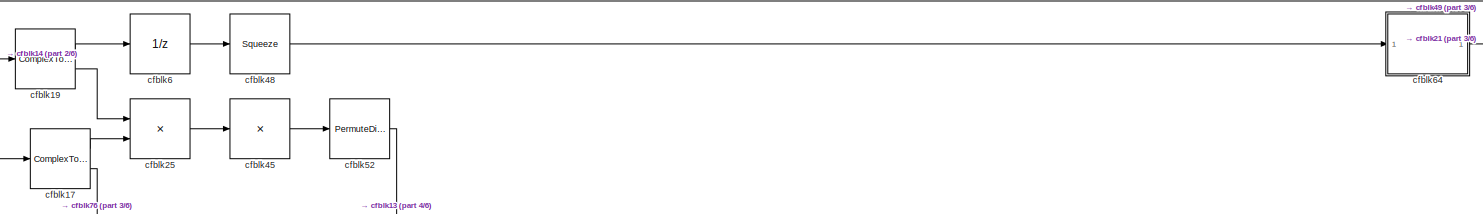
[diagram: root canvas - part 1/6, top center region]
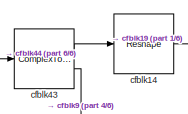
[diagram: root canvas - part 2/6, top left region]
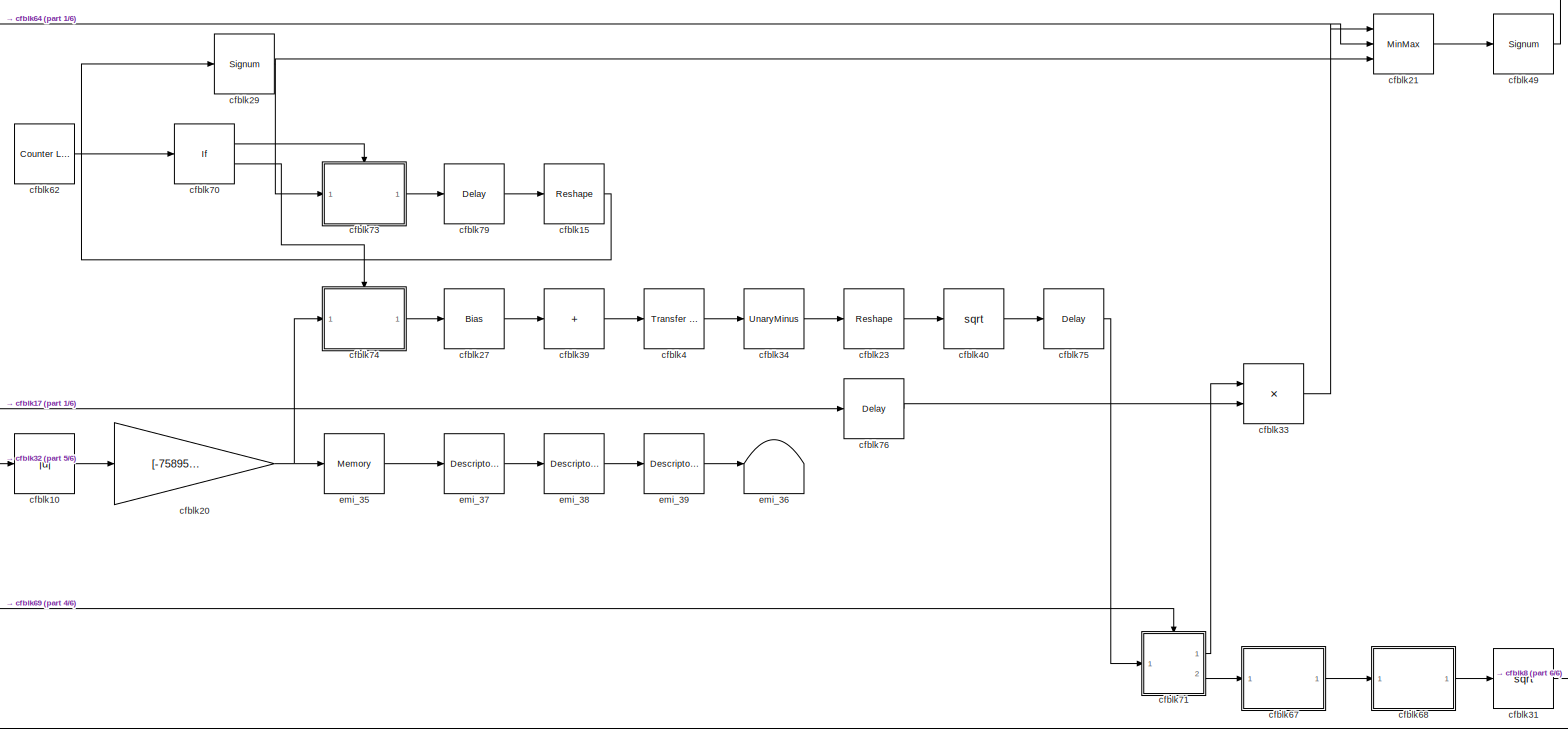
[diagram: root canvas - part 3/6, middle right region]
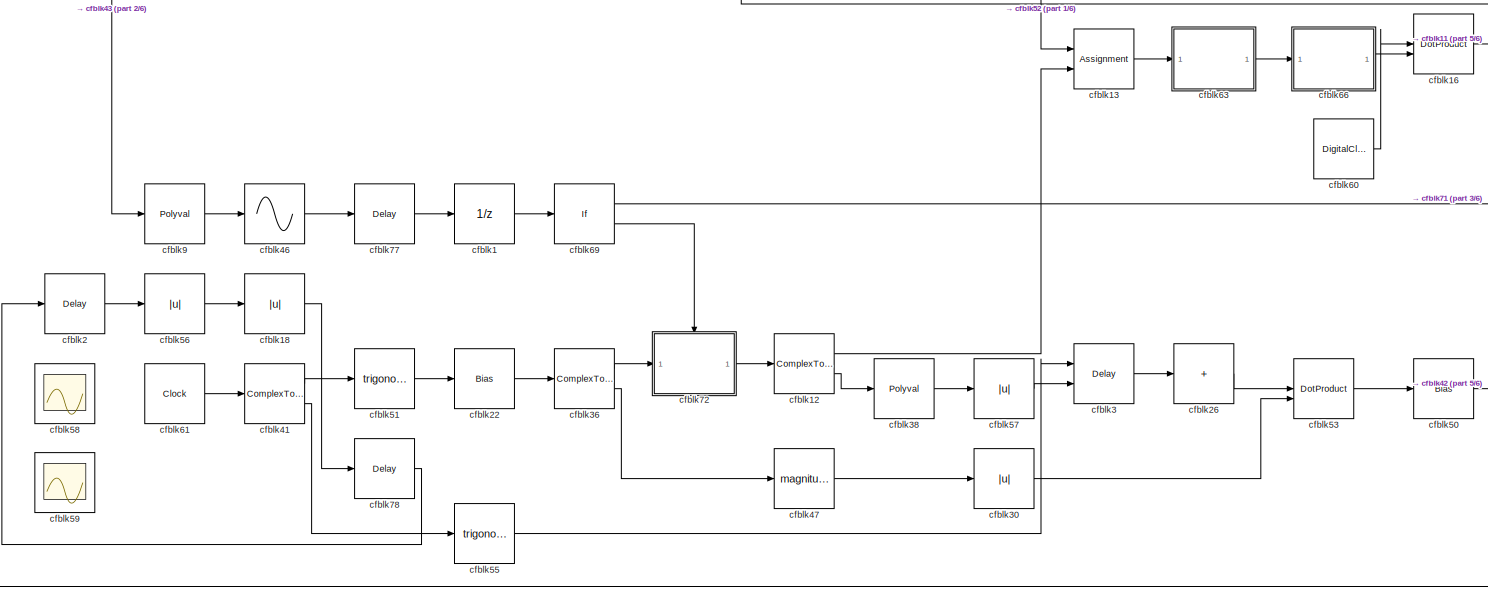
[diagram: root canvas - part 4/6, bottom left region]
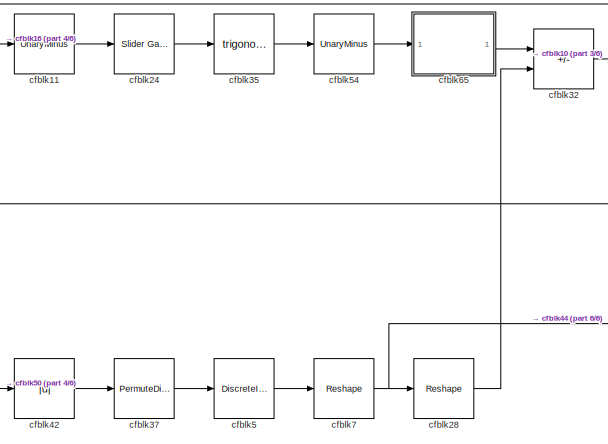
[diagram: root canvas - part 5/6, central region]
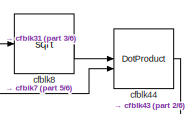
[diagram: root canvas - part 6/6, bottom right region]
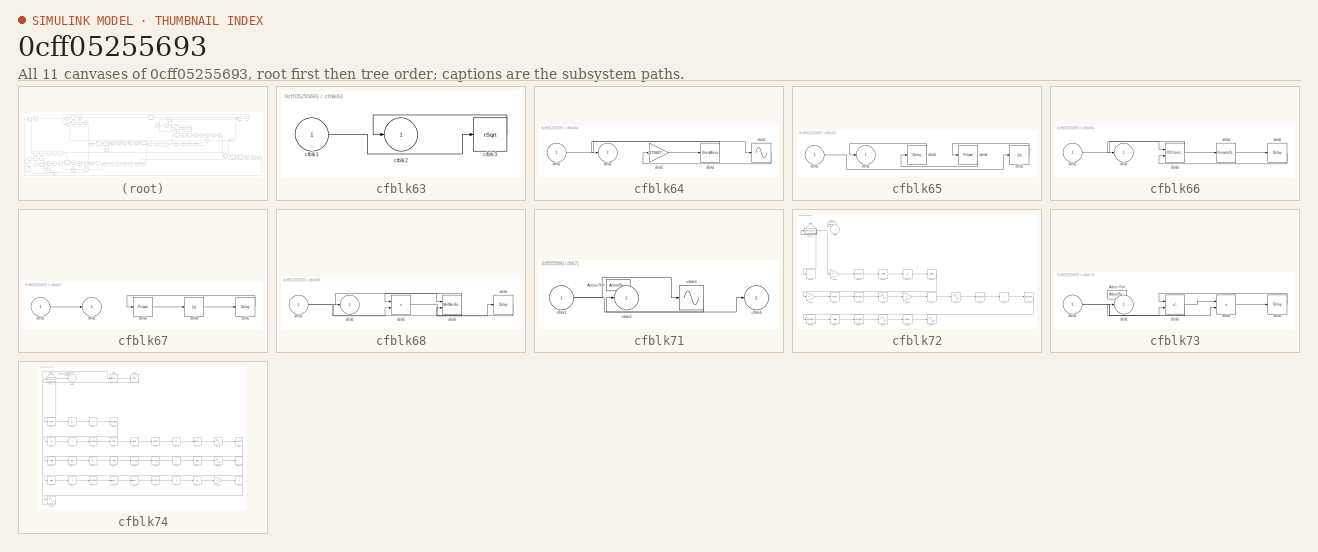
[diagram: thumbnail index - all 11 canvases of the model, root first then tree order]
MODEL slx_0cff05255693
KIND model
CONFIG AbsTol = auto
CONFIG EnableMultiTasking = off
CONFIG FixedStep = auto
CONFIG MaxStep = auto
CONFIG MinStep = auto
CONFIG RelTol = 1e-3
CONFIG SampleTimeConstraint = Unconstrained
CONFIG SolverName = VariableStepAuto
CONFIG StartTime = 0.0
CONFIG StopTime = 10.0
BLOCK [UnitDelay] cfblk1
  HasFrameUpgradeWarning = on
BLOCK [Abs] cfblk10
  SaturateOnIntegerOverflow = off
BLOCK [UnaryMinus] cfblk11
BLOCK [ComplexToMagnitudeAngle] cfblk12
  Ports = [1, 2]
BLOCK [Assignment] cfblk13
  DiagnosticForDimensions = Warning
  IndexOptions = Index vector (dialog)
  Indices = 1
  OutputSizes = 1
  Ports = [2, 1]
BLOCK [Reshape] cfblk14
  Ports = [1, 1]
BLOCK [Reshape] cfblk15
  Ports = [1, 1]
BLOCK [DotProduct] cfblk16
  OutDataTypeStr = Inherit: Inherit via internal rule
BLOCK [ComplexToMagnitudeAngle] cfblk17
  Ports = [1, 2]
BLOCK [Abs] cfblk18
  SaturateOnIntegerOverflow = off
BLOCK [ComplexToRealImag] cfblk19
  Ports = [1, 2]
BLOCK [Delay] cfblk2
  InputPortMap = u0
  Ports = [1, 1]
  SampleTime = 1
BLOCK [Gain] cfblk20
  Gain = [-758951851.585151]
BLOCK [MinMax] cfblk21
  Inputs = 3
  Ports = [3, 1]
BLOCK [Bias] cfblk22
  Bias = [749742041.378697]
  SaturateOnIntegerOverflow = off
BLOCK [Reshape] cfblk23
  Ports = [1, 1]
BLOCK [Reference] cfblk24  REF=simulink/Math
Operations/Slider
Gain
  Ports = [1, 1]
  SourceBlock = simulink/Math\nOperations/Slider\nGain
  SourceProductBaseCode = SL
  SourceType = Slider Gain
BLOCK [Product] cfblk25
  Ports = [2, 1]
BLOCK [Sum] cfblk26
  IconShape = rectangular
  Inputs = +
  Ports = [1, 1]
BLOCK [Bias] cfblk27
  Bias = [-185034104.199175]
  SaturateOnIntegerOverflow = off
BLOCK [Reshape] cfblk28
  Ports = [1, 1]
BLOCK [Signum] cfblk29
BLOCK [Delay] cfblk3
  DelayLengthSource = Input port
  InputPortMap = u0,p1
  Ports = [2, 1]
  SampleTime = 1
BLOCK [Abs] cfblk30
  SaturateOnIntegerOverflow = off
BLOCK [Sqrt] cfblk31
BLOCK [Sum] cfblk32
  IconShape = rectangular
  Inputs = +-
  Ports = [2, 1]
BLOCK [Product] cfblk33
  Ports = [2, 1]
BLOCK [UnaryMinus] cfblk34
BLOCK [Trigonometry] cfblk35
  Ports = [1, 1]
BLOCK [ComplexToMagnitudeAngle] cfblk36
  Ports = [1, 2]
BLOCK [PermuteDimensions] cfblk37
BLOCK [Polyval] cfblk38
  Coefs = [ +2.081618890e-019, -1.441693666e-014, +4.719686976e-010, -8.536869453e-006, +1.621573104e-001, -8.087801117e+001 ]
BLOCK [Sum] cfblk39
  IconShape = rectangular
  Inputs = +
  Ports = [1, 1]
BLOCK [Reference] cfblk4  REF=simulink/Discrete/Transfer Fcn
First Order
  Ports = [1, 1]
  SourceBlock = simulink/Discrete/Transfer Fcn\nFirst Order
  SourceProductBaseCode = SL
  SourceType = First Order Transfer Fcn
BLOCK [Sqrt] cfblk40
BLOCK [ComplexToRealImag] cfblk41
  Ports = [1, 2]
BLOCK [Abs] cfblk42
  SaturateOnIntegerOverflow = off
BLOCK [ComplexToMagnitudeAngle] cfblk43
  Ports = [1, 2]
BLOCK [DotProduct] cfblk44
  OutDataTypeStr = Inherit: Inherit via internal rule
BLOCK [Product] cfblk45
  Inputs = *
  Ports = [1, 1]
BLOCK [Sin] cfblk46
  Ports = [1, 1]
  SampleTime = 0
  TimeSource = Use external signal
BLOCK [Math] cfblk47
  Operator = magnitude^2
  Ports = [1, 1]
BLOCK [Squeeze] cfblk48
BLOCK [Signum] cfblk49
BLOCK [DiscreteIntegrator] cfblk5
  ICPrevOutput = DiscIntNeverNeededParam
  ICPrevScaledInput = DiscIntNeverNeededParam
  InitialConditionSetting = Auto
  Ports = [1, 1]
BLOCK [Bias] cfblk50
  Bias = [622648534.571803]
  SaturateOnIntegerOverflow = off
BLOCK [Trigonometry] cfblk51
  Ports = [1, 1]
BLOCK [PermuteDimensions] cfblk52
BLOCK [DotProduct] cfblk53
  OutDataTypeStr = Inherit: Inherit via internal rule
BLOCK [UnaryMinus] cfblk54
BLOCK [Trigonometry] cfblk55
  Ports = [1, 1]
BLOCK [Abs] cfblk56
  SaturateOnIntegerOverflow = off
BLOCK [Abs] cfblk57
  SaturateOnIntegerOverflow = off
BLOCK [Scope] cfblk58
  Floating = on
  NumInputPorts = 1
  Ports = []
  ScopeSpecificationString = Simulink.scopes.TimeScopeBlockCfg('CurrentConfiguration', extmgr.ConfigurationSet(extmgr.Configuration('Core','General UI',true),extmgr.Configuration('Core','Source UI',true),extmgr.Configuration('Sources','WiredSimulink',true),extmgr.Configuration('Visuals','Time Domain',true),extmgr.Configuration('Tools','Plot Navigation',true),extmgr.Configuration('Tools','Measurements',true)),'Version','2021b'...<+1ch>
BLOCK [Scope] cfblk59
  Floating = on
  NumInputPorts = 1
  Ports = []
  ScopeSpecificationString = Simulink.scopes.TimeScopeBlockCfg('CurrentConfiguration', extmgr.ConfigurationSet(extmgr.Configuration('Core','General UI',true),extmgr.Configuration('Core','Source UI',true),extmgr.Configuration('Sources','WiredSimulink',true),extmgr.Configuration('Visuals','Time Domain',true),extmgr.Configuration('Tools','Plot Navigation',true),extmgr.Configuration('Tools','Measurements',true)),'Version','2021b'...<+1ch>
BLOCK [UnitDelay] cfblk6
  HasFrameUpgradeWarning = on
BLOCK [DigitalClock] cfblk60
BLOCK [Clock] cfblk61
BLOCK [Reference] cfblk62  REF=simulink/Sources/Counter
Limited
  Ports = [0, 1]
  SourceBlock = simulink/Sources/Counter\nLimited
  SourceProductBaseCode = SL
  SourceType = Counter Limited
BLOCK [SubSystem] cfblk63
  Ports = [1, 1]
  RequestExecContextInheritance = off
BLOCK [Inport] cfblk63/cfblk1
BLOCK [Outport] cfblk63/cfblk2
BLOCK [Sqrt] cfblk63/cfblk3
  AlgorithmType = Newton-Raphson
  Operator = rSqrt
BLOCK [SubSystem] cfblk64
  Ports = [1, 1]
  RequestExecContextInheritance = off
BLOCK [Inport] cfblk64/cfblk1
BLOCK [Outport] cfblk64/cfblk2
BLOCK [Gain] cfblk64/cfblk3
  Gain = [275667239.765952]
BLOCK [UnaryMinus] cfblk64/cfblk4
BLOCK [Sin] cfblk64/cfblk5
  Ports = [1, 1]
  SampleTime = 0
  TimeSource = Use external signal
BLOCK [SubSystem] cfblk65
  Ports = [1, 1]
  RequestExecContextInheritance = off
BLOCK [Inport] cfblk65/cfblk1
BLOCK [Outport] cfblk65/cfblk2
BLOCK [Delay] cfblk65/cfblk3
  InputPortMap = u0
  Ports = [1, 1]
  SampleTime = 1
BLOCK [Polyval] cfblk65/cfblk4
  Coefs = [ +2.081618890e-019, -1.441693666e-014, +4.719686976e-010, -8.536869453e-006, +1.621573104e-001, -8.087801117e+001 ]
BLOCK [Abs] cfblk65/cfblk5
  SaturateOnIntegerOverflow = off
BLOCK [SubSystem] cfblk66
  Ports = [1, 1]
  RequestExecContextInheritance = off
BLOCK [Inport] cfblk66/cfblk1
BLOCK [Outport] cfblk66/cfblk2
BLOCK [Reference] cfblk66/cfblk3  REF=slpidlib/PID Controller (2DOF)
  Ports = [2, 1]
  SourceBlock = slpidlib/PID Controller (2DOF)
  SourceProductBaseCode = SL
  SourceType = PID 2dof
BLOCK [PermuteDimensions] cfblk66/cfblk4
BLOCK [Delay] cfblk66/cfblk5
  InputPortMap = u0
  Ports = [1, 1]
  SampleTime = 1
BLOCK [SubSystem] cfblk67
  Ports = [1, 1]
  RequestExecContextInheritance = off
BLOCK [Inport] cfblk67/cfblk1
BLOCK [Outport] cfblk67/cfblk2
BLOCK [Polyval] cfblk67/cfblk3
  Coefs = [ +2.081618890e-019, -1.441693666e-014, +4.719686976e-010, -8.536869453e-006, +1.621573104e-001, -8.087801117e+001 ]
BLOCK [Abs] cfblk67/cfblk4
  SaturateOnIntegerOverflow = off
BLOCK [Delay] cfblk67/cfblk5
  InputPortMap = u0
  Ports = [1, 1]
  SampleTime = 1
BLOCK [SubSystem] cfblk68
  Ports = [1, 1]
  RequestExecContextInheritance = off
BLOCK [Inport] cfblk68/cfblk1
BLOCK [Outport] cfblk68/cfblk2
BLOCK [Product] cfblk68/cfblk3
  Ports = [2, 1]
BLOCK [Reference] cfblk68/cfblk4  REF=simulink/Math
Operations/MinMax
Running
Resettable
  Ports = [2, 1]
  SourceBlock = simulink/Math\nOperations/MinMax\nRunning\nResettable
  SourceProductBaseCode = SL
  SourceType = MinMax Running Resettable
BLOCK [Delay] cfblk68/cfblk5
  InputPortMap = u0
  Ports = [1, 1]
  SampleTime = 1
BLOCK [If] cfblk69
  IfExpression = u1 >= 0
  Ports = [1, 2]
  SampleTime = 1
BLOCK [Reshape] cfblk7
  Ports = [1, 1]
BLOCK [If] cfblk70
  IfExpression = u1 >= 0
  Ports = [1, 2]
  SampleTime = 1
BLOCK [SubSystem] cfblk71
  Ports = [1, 2, 0, 0, 0, 0, 0, 1]
  RequestExecContextInheritance = off
  TreatAsAtomicUnit = on
BLOCK [ActionPort] cfblk71/Action Port
  ActionPortLabel = if(u1 >= 0)
BLOCK [Inport] cfblk71/cfblk1
BLOCK [Outport] cfblk71/cfblk2
BLOCK [Sin] cfblk71/cfblk3
  Ports = [1, 1]
  SampleTime = 0
  TimeSource = Use external signal
BLOCK [Outport] cfblk71/cfblk4
  Port = 2
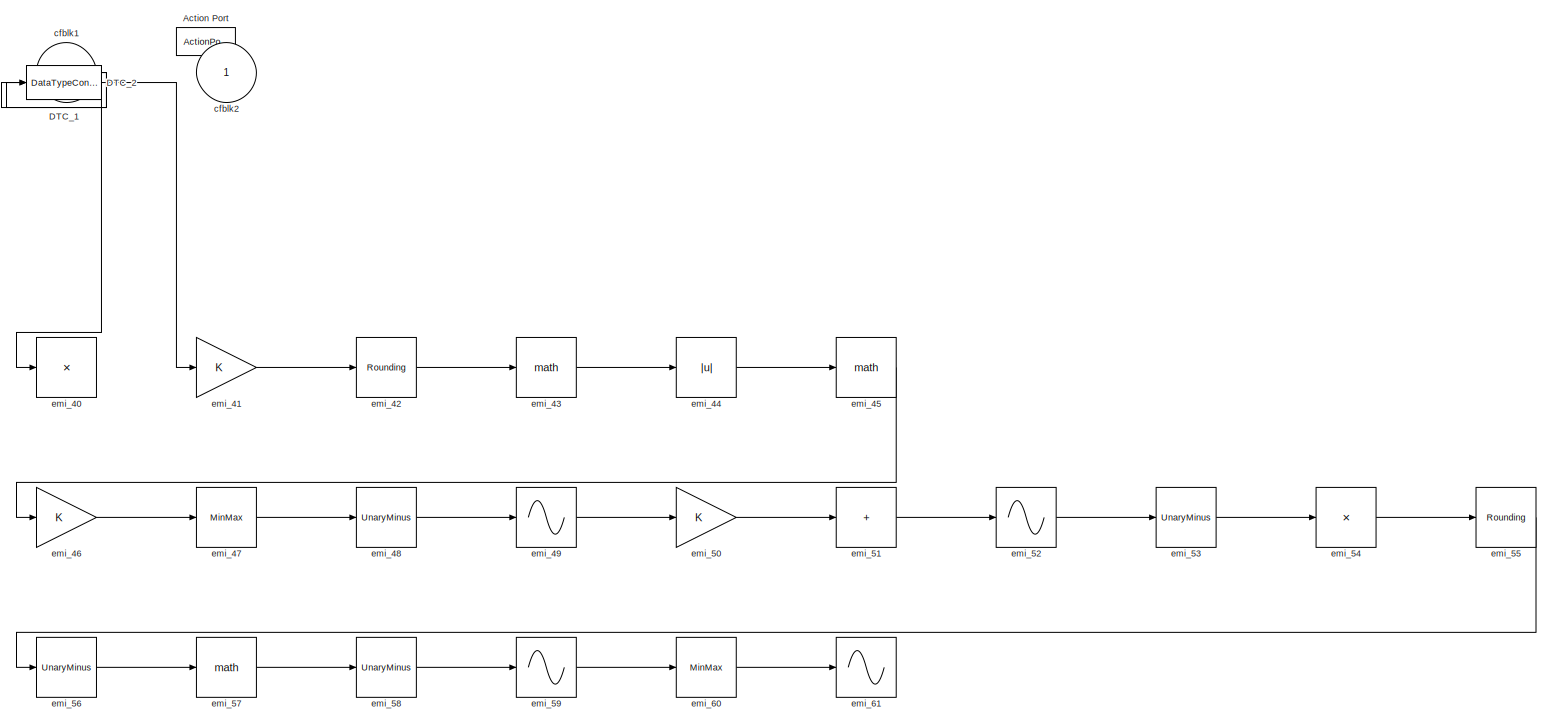
[diagram: cfblk72 - part 1/1, most of the canvas]
BLOCK [SubSystem] cfblk72
  Ports = [1, 1, 0, 0, 0, 0, 0, 1]
  RequestExecContextInheritance = off
  TreatAsAtomicUnit = on
BLOCK [ActionPort] cfblk72/Action Port
  ActionPortLabel = else
BLOCK [DataTypeConversion] cfblk72/DTC_1
  OutDataTypeStr = double
  RndMeth = Floor
  SaturateOnIntegerOverflow = off
BLOCK [DataTypeConversion] cfblk72/DTC_2
  OutDataTypeStr = double
  RndMeth = Floor
  SaturateOnIntegerOverflow = off
BLOCK [Inport] cfblk72/cfblk1
BLOCK [Outport] cfblk72/cfblk2
BLOCK [Product] cfblk72/emi_40
  Inputs = *
  Ports = [1, 1]
BLOCK [Gain] cfblk72/emi_41
BLOCK [Rounding] cfblk72/emi_42
BLOCK [Math] cfblk72/emi_43
  Ports = [1, 1]
BLOCK [Abs] cfblk72/emi_44
  SaturateOnIntegerOverflow = off
BLOCK [Math] cfblk72/emi_45
  Ports = [1, 1]
BLOCK [Gain] cfblk72/emi_46
BLOCK [MinMax] cfblk72/emi_47
  Ports = [1, 1]
BLOCK [UnaryMinus] cfblk72/emi_48
BLOCK [Sin] cfblk72/emi_49
  Ports = [1, 1]
  SampleTime = 0
  TimeSource = Use external signal
BLOCK [Gain] cfblk72/emi_50
BLOCK [Sum] cfblk72/emi_51
  IconShape = rectangular
  Inputs = +
  Ports = [1, 1]
BLOCK [Sin] cfblk72/emi_52
  Ports = [1, 1]
  SampleTime = 0
  TimeSource = Use external signal
BLOCK [UnaryMinus] cfblk72/emi_53
BLOCK [Product] cfblk72/emi_54
  Inputs = *
  Ports = [1, 1]
BLOCK [Rounding] cfblk72/emi_55
BLOCK [UnaryMinus] cfblk72/emi_56
BLOCK [Math] cfblk72/emi_57
  Ports = [1, 1]
BLOCK [UnaryMinus] cfblk72/emi_58
BLOCK [Sin] cfblk72/emi_59
  Ports = [1, 1]
  SampleTime = 0
  TimeSource = Use external signal
BLOCK [MinMax] cfblk72/emi_60
  Ports = [1, 1]
BLOCK [Sin] cfblk72/emi_61
  Ports = [1, 1]
  SampleTime = 0
  TimeSource = Use external signal
BLOCK [SubSystem] cfblk73
  Ports = [1, 1, 0, 0, 0, 0, 0, 1]
  RequestExecContextInheritance = off
  TreatAsAtomicUnit = on
BLOCK [ActionPort] cfblk73/Action Port
  ActionPortLabel = if(u1 >= 0)
BLOCK [Inport] cfblk73/cfblk1
BLOCK [Outport] cfblk73/cfblk2
BLOCK [Sum] cfblk73/cfblk3
  IconShape = rectangular
  Inputs = +-
  Ports = [2, 1]
BLOCK [Product] cfblk73/cfblk4
  Inputs = **
  Ports = [2, 1]
BLOCK [Delay] cfblk73/cfblk5
  InputPortMap = u0
  Ports = [1, 1]
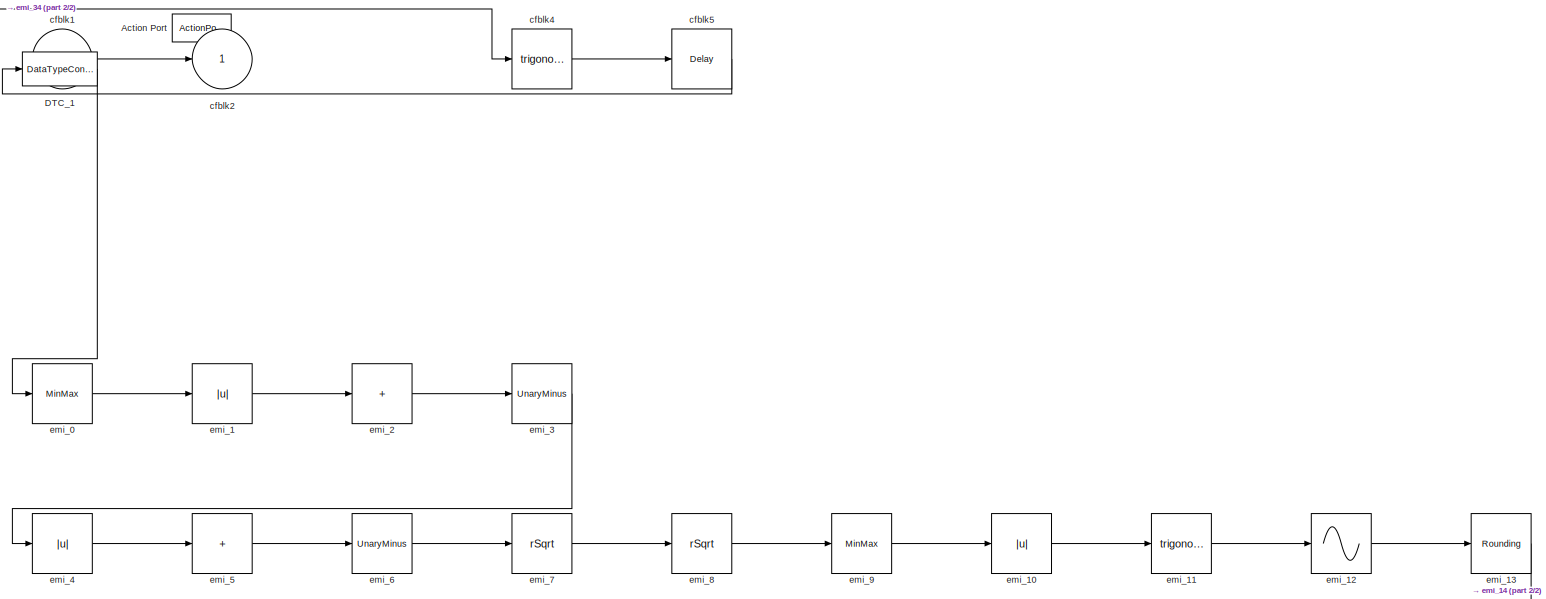
[diagram: cfblk74 - part 1/2, full width, top band]
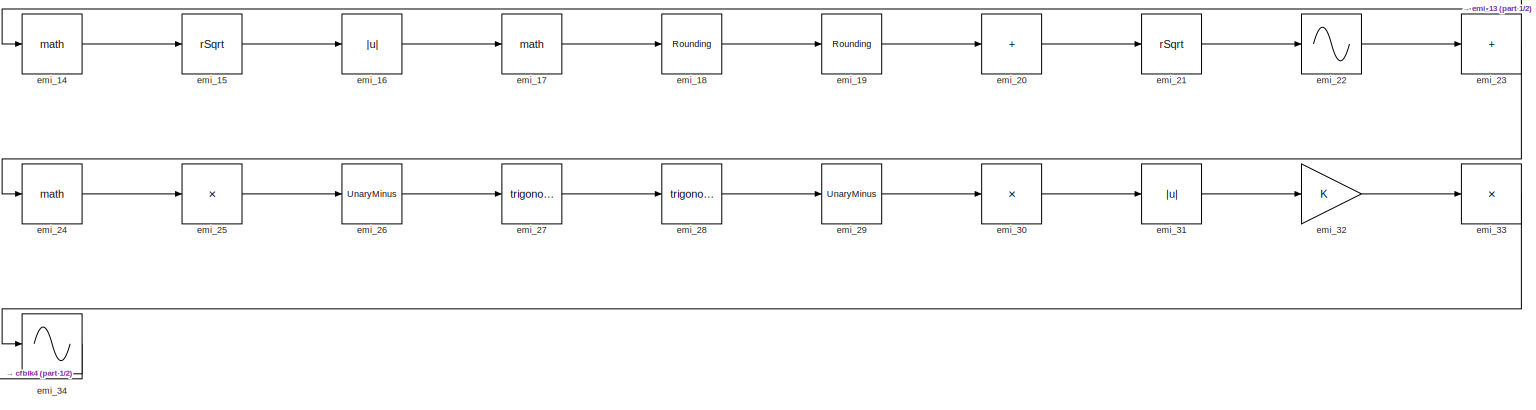
[diagram: cfblk74 - part 2/2, full width, bottom band]
BLOCK [SubSystem] cfblk74
  Ports = [1, 1, 0, 0, 0, 0, 0, 1]
  RequestExecContextInheritance = off
  TreatAsAtomicUnit = on
BLOCK [ActionPort] cfblk74/Action Port
  ActionPortLabel = else
BLOCK [DataTypeConversion] cfblk74/DTC_1
  OutDataTypeStr = double
  RndMeth = Floor
  SaturateOnIntegerOverflow = off
BLOCK [Inport] cfblk74/cfblk1
BLOCK [Outport] cfblk74/cfblk2
BLOCK [Trigonometry] cfblk74/cfblk4
  Ports = [1, 1]
BLOCK [Delay] cfblk74/cfblk5
  InputPortMap = u0
  Ports = [1, 1]
BLOCK [MinMax] cfblk74/emi_0
  Ports = [1, 1]
BLOCK [Abs] cfblk74/emi_1
  SaturateOnIntegerOverflow = off
BLOCK [Abs] cfblk74/emi_10
  SaturateOnIntegerOverflow = off
BLOCK [Trigonometry] cfblk74/emi_11
  Ports = [1, 1]
BLOCK [Sin] cfblk74/emi_12
  Ports = [1, 1]
  SampleTime = 0
  TimeSource = Use external signal
BLOCK [Rounding] cfblk74/emi_13
BLOCK [Math] cfblk74/emi_14
  Ports = [1, 1]
BLOCK [Sqrt] cfblk74/emi_15
  Operator = rSqrt
BLOCK [Abs] cfblk74/emi_16
  SaturateOnIntegerOverflow = off
BLOCK [Math] cfblk74/emi_17
  Ports = [1, 1]
BLOCK [Rounding] cfblk74/emi_18
BLOCK [Rounding] cfblk74/emi_19
BLOCK [Sum] cfblk74/emi_2
  IconShape = rectangular
  Inputs = +
  Ports = [1, 1]
BLOCK [Sum] cfblk74/emi_20
  IconShape = rectangular
  Inputs = +
  Ports = [1, 1]
BLOCK [Sqrt] cfblk74/emi_21
  Operator = rSqrt
BLOCK [Sin] cfblk74/emi_22
  Ports = [1, 1]
  SampleTime = 0
  TimeSource = Use external signal
BLOCK [Sum] cfblk74/emi_23
  IconShape = rectangular
  Inputs = +
  Ports = [1, 1]
BLOCK [Math] cfblk74/emi_24
  Ports = [1, 1]
BLOCK [Product] cfblk74/emi_25
  Inputs = *
  Ports = [1, 1]
BLOCK [UnaryMinus] cfblk74/emi_26
BLOCK [Trigonometry] cfblk74/emi_27
  Ports = [1, 1]
BLOCK [Trigonometry] cfblk74/emi_28
  Ports = [1, 1]
BLOCK [UnaryMinus] cfblk74/emi_29
BLOCK [UnaryMinus] cfblk74/emi_3
BLOCK [Product] cfblk74/emi_30
  Inputs = *
  Ports = [1, 1]
BLOCK [Abs] cfblk74/emi_31
  SaturateOnIntegerOverflow = off
BLOCK [Gain] cfblk74/emi_32
BLOCK [Product] cfblk74/emi_33
  Inputs = *
  Ports = [1, 1]
BLOCK [Sin] cfblk74/emi_34
  Ports = [1, 1]
  SampleTime = 0
  TimeSource = Use external signal
BLOCK [Abs] cfblk74/emi_4
  SaturateOnIntegerOverflow = off
BLOCK [Sum] cfblk74/emi_5
  IconShape = rectangular
  Inputs = +
  Ports = [1, 1]
BLOCK [UnaryMinus] cfblk74/emi_6
BLOCK [Sqrt] cfblk74/emi_7
  Operator = rSqrt
BLOCK [Sqrt] cfblk74/emi_8
  Operator = rSqrt
BLOCK [MinMax] cfblk74/emi_9
  Ports = [1, 1]
BLOCK [Delay] cfblk75
  InputPortMap = u0
  Ports = [1, 1]
  SampleTime = 1
BLOCK [Delay] cfblk76
  InputPortMap = u0
  Ports = [1, 1]
  SampleTime = 1
BLOCK [Delay] cfblk77
  InputPortMap = u0
  Ports = [1, 1]
  SampleTime = 1
BLOCK [Delay] cfblk78
  InputPortMap = u0
  Ports = [1, 1]
  SampleTime = 1
BLOCK [Delay] cfblk79
  InputPortMap = u0
  Ports = [1, 1]
  SampleTime = 1
BLOCK [Sqrt] cfblk8
BLOCK [Polyval] cfblk9
  Coefs = [ +2.081618890e-019, -1.441693666e-014, +4.719686976e-010, -8.536869453e-006, +1.621573104e-001, -8.087801117e+001 ]
BLOCK [Memory] emi_35
BLOCK [Terminator] emi_36
BLOCK [DescriptorStateSpace] emi_37
  Ports = [1, 1]
BLOCK [DescriptorStateSpace] emi_38
  Ports = [1, 1]
BLOCK [DescriptorStateSpace] emi_39
  Ports = [1, 1]
LINE cfblk10:1 -> cfblk20:1
LINE cfblk11:1 -> cfblk24:1
LINE cfblk12:1 -> cfblk13:2
LINE cfblk12:2 -> cfblk38:1
LINE cfblk13:1 -> cfblk63:1
LINE cfblk14:1 -> cfblk19:1
LINE cfblk15:1 -> cfblk29:1
LINE cfblk16:1 -> cfblk11:1
LINE cfblk17:1 -> cfblk25:2
LINE cfblk17:2 -> cfblk76:1
LINE cfblk18:1 -> cfblk78:1
LINE cfblk19:1 -> cfblk6:1
LINE cfblk19:2 -> cfblk25:1
LINE cfblk1:1 -> cfblk69:1
NET cfblk20:1 -> cfblk74:1, emi_35:1
LINE cfblk21:1 -> cfblk49:1
LINE cfblk22:1 -> cfblk36:1
LINE cfblk23:1 -> cfblk40:1
LINE cfblk24:1 -> cfblk35:1
LINE cfblk25:1 -> cfblk45:1
LINE cfblk26:1 -> cfblk53:1
LINE cfblk27:1 -> cfblk39:1
LINE cfblk28:1 -> cfblk32:2
NET cfblk29:1 -> cfblk21:3, cfblk73:1
LINE cfblk2:1 -> cfblk56:1
LINE cfblk30:1 -> cfblk53:2
LINE cfblk31:1 -> cfblk8:1
LINE cfblk32:1 -> cfblk10:1
LINE cfblk33:1 -> cfblk21:1
LINE cfblk34:1 -> cfblk23:1
LINE cfblk35:1 -> cfblk54:1
LINE cfblk36:1 -> cfblk72:1
LINE cfblk36:2 -> cfblk47:1
LINE cfblk37:1 -> cfblk5:1
LINE cfblk38:1 -> cfblk57:1
LINE cfblk39:1 -> cfblk4:1
LINE cfblk3:1 -> cfblk26:1
LINE cfblk40:1 -> cfblk75:1
LINE cfblk41:1 -> cfblk51:1
LINE cfblk41:2 -> cfblk55:1
LINE cfblk42:1 -> cfblk37:1
LINE cfblk43:1 -> cfblk14:1
LINE cfblk43:2 -> cfblk9:1
LINE cfblk44:1 -> cfblk43:1
LINE cfblk45:1 -> cfblk52:1
LINE cfblk46:1 -> cfblk77:1
LINE cfblk47:1 -> cfblk30:1
LINE cfblk48:1 -> cfblk64:1
LINE cfblk49:1 -> cfblk17:1
LINE cfblk4:1 -> cfblk34:1
LINE cfblk50:1 -> cfblk42:1
LINE cfblk51:1 -> cfblk22:1
LINE cfblk52:1 -> cfblk13:1
LINE cfblk53:1 -> cfblk50:1
LINE cfblk54:1 -> cfblk65:1
LINE cfblk55:1 -> cfblk3:1
LINE cfblk56:1 -> cfblk18:1
LINE cfblk57:1 -> cfblk3:2
LINE cfblk5:1 -> cfblk7:1
LINE cfblk60:1 -> cfblk16:1
LINE cfblk61:1 -> cfblk41:1
LINE cfblk62:1 -> cfblk70:1
LINE cfblk63/cfblk1:1 -> cfblk63/cfblk3:1
LINE cfblk63/cfblk3:1 -> cfblk63/cfblk2:1
LINE cfblk63:1 -> cfblk66:1
LINE cfblk64/cfblk1:1 -> cfblk64/cfblk5:1
LINE cfblk64/cfblk3:1 -> cfblk64/cfblk4:1
LINE cfblk64/cfblk4:1 -> cfblk64/cfblk2:1
LINE cfblk64/cfblk5:1 -> cfblk64/cfblk3:1
LINE cfblk64:1 -> cfblk21:2
LINE cfblk65/cfblk1:1 -> cfblk65/cfblk5:1
LINE cfblk65/cfblk3:1 -> cfblk65/cfblk2:1
LINE cfblk65/cfblk4:1 -> cfblk65/cfblk3:1
LINE cfblk65/cfblk5:1 -> cfblk65/cfblk4:1
LINE cfblk65:1 -> cfblk32:1
LINE cfblk66/cfblk1:1 -> cfblk66/cfblk3:1
NET cfblk66/cfblk3:1 -> cfblk66/cfblk2:1, cfblk66/cfblk4:1
LINE cfblk66/cfblk4:1 -> cfblk66/cfblk5:1
LINE cfblk66/cfblk5:1 -> cfblk66/cfblk3:2
LINE cfblk66:1 -> cfblk16:2
LINE cfblk67/cfblk1:1 -> cfblk67/cfblk2:1
LINE cfblk67/cfblk3:1 -> cfblk67/cfblk4:1
LINE cfblk67/cfblk4:1 -> cfblk67/cfblk5:1
LINE cfblk67/cfblk5:1 -> cfblk67/cfblk3:1
LINE cfblk67:1 -> cfblk68:1
NET cfblk68/cfblk1:1 -> cfblk68/cfblk3:2, cfblk68/cfblk4:1
LINE cfblk68/cfblk3:1 -> cfblk68/cfblk5:1
NET cfblk68/cfblk4:1 -> cfblk68/cfblk2:1, cfblk68/cfblk3:1
LINE cfblk68/cfblk5:1 -> cfblk68/cfblk4:2
LINE cfblk68:1 -> cfblk31:1
LINE cfblk69:1 -> cfblk71:ifaction
LINE cfblk69:2 -> cfblk72:ifaction
LINE cfblk6:1 -> cfblk48:1
LINE cfblk70:1 -> cfblk73:ifaction
LINE cfblk70:2 -> cfblk74:ifaction
NET cfblk71/cfblk1:1 -> cfblk71/cfblk3:1, cfblk71/cfblk4:1
LINE cfblk71/cfblk3:1 -> cfblk71/cfblk2:1
LINE cfblk71:1 -> cfblk33:1
LINE cfblk71:2 -> cfblk67:1
LINE cfblk72/DTC_1:1 -> cfblk72/emi_40:1
LINE cfblk72/DTC_2:1 -> cfblk72/emi_41:1
NET cfblk72/cfblk1:1 -> cfblk72/DTC_1:1, cfblk72/DTC_2:1
LINE cfblk72/emi_41:1 -> cfblk72/emi_42:1
LINE cfblk72/emi_42:1 -> cfblk72/emi_43:1
LINE cfblk72/emi_43:1 -> cfblk72/emi_44:1
LINE cfblk72/emi_44:1 -> cfblk72/emi_45:1
LINE cfblk72/emi_45:1 -> cfblk72/emi_46:1
LINE cfblk72/emi_46:1 -> cfblk72/emi_47:1
LINE cfblk72/emi_47:1 -> cfblk72/emi_48:1
LINE cfblk72/emi_48:1 -> cfblk72/emi_49:1
LINE cfblk72/emi_49:1 -> cfblk72/emi_50:1
LINE cfblk72/emi_50:1 -> cfblk72/emi_51:1
LINE cfblk72/emi_51:1 -> cfblk72/emi_52:1
LINE cfblk72/emi_52:1 -> cfblk72/emi_53:1
LINE cfblk72/emi_53:1 -> cfblk72/emi_54:1
LINE cfblk72/emi_54:1 -> cfblk72/emi_55:1
LINE cfblk72/emi_55:1 -> cfblk72/emi_56:1
LINE cfblk72/emi_56:1 -> cfblk72/emi_57:1
LINE cfblk72/emi_57:1 -> cfblk72/emi_58:1
LINE cfblk72/emi_58:1 -> cfblk72/emi_59:1
LINE cfblk72/emi_59:1 -> cfblk72/emi_60:1
LINE cfblk72/emi_60:1 -> cfblk72/emi_61:1
LINE cfblk72:1 -> cfblk12:1
NET cfblk73/cfblk1:1 -> cfblk73/cfblk3:2, cfblk73/cfblk4:2
NET cfblk73/cfblk3:1 -> cfblk73/cfblk2:1, cfblk73/cfblk4:1
LINE cfblk73/cfblk4:1 -> cfblk73/cfblk5:1
LINE cfblk73/cfblk5:1 -> cfblk73/cfblk3:1
LINE cfblk73:1 -> cfblk79:1
LINE cfblk74/DTC_1:1 -> cfblk74/emi_0:1
LINE cfblk74/cfblk1:1 -> cfblk74/cfblk2:1
LINE cfblk74/cfblk4:1 -> cfblk74/cfblk5:1
LINE cfblk74/cfblk5:1 -> cfblk74/DTC_1:1
LINE cfblk74/emi_0:1 -> cfblk74/emi_1:1
LINE cfblk74/emi_10:1 -> cfblk74/emi_11:1
LINE cfblk74/emi_11:1 -> cfblk74/emi_12:1
LINE cfblk74/emi_12:1 -> cfblk74/emi_13:1
LINE cfblk74/emi_13:1 -> cfblk74/emi_14:1
LINE cfblk74/emi_14:1 -> cfblk74/emi_15:1
LINE cfblk74/emi_15:1 -> cfblk74/emi_16:1
LINE cfblk74/emi_16:1 -> cfblk74/emi_17:1
LINE cfblk74/emi_17:1 -> cfblk74/emi_18:1
LINE cfblk74/emi_18:1 -> cfblk74/emi_19:1
LINE cfblk74/emi_19:1 -> cfblk74/emi_20:1
LINE cfblk74/emi_1:1 -> cfblk74/emi_2:1
LINE cfblk74/emi_20:1 -> cfblk74/emi_21:1
LINE cfblk74/emi_21:1 -> cfblk74/emi_22:1
LINE cfblk74/emi_22:1 -> cfblk74/emi_23:1
LINE cfblk74/emi_23:1 -> cfblk74/emi_24:1
LINE cfblk74/emi_24:1 -> cfblk74/emi_25:1
LINE cfblk74/emi_25:1 -> cfblk74/emi_26:1
LINE cfblk74/emi_26:1 -> cfblk74/emi_27:1
LINE cfblk74/emi_27:1 -> cfblk74/emi_28:1
LINE cfblk74/emi_28:1 -> cfblk74/emi_29:1
LINE cfblk74/emi_29:1 -> cfblk74/emi_30:1
LINE cfblk74/emi_2:1 -> cfblk74/emi_3:1
LINE cfblk74/emi_30:1 -> cfblk74/emi_31:1
LINE cfblk74/emi_31:1 -> cfblk74/emi_32:1
LINE cfblk74/emi_32:1 -> cfblk74/emi_33:1
LINE cfblk74/emi_33:1 -> cfblk74/emi_34:1
LINE cfblk74/emi_34:1 -> cfblk74/cfblk4:1
LINE cfblk74/emi_3:1 -> cfblk74/emi_4:1
LINE cfblk74/emi_4:1 -> cfblk74/emi_5:1
LINE cfblk74/emi_5:1 -> cfblk74/emi_6:1
LINE cfblk74/emi_6:1 -> cfblk74/emi_7:1
LINE cfblk74/emi_7:1 -> cfblk74/emi_8:1
LINE cfblk74/emi_8:1 -> cfblk74/emi_9:1
LINE cfblk74/emi_9:1 -> cfblk74/emi_10:1
LINE cfblk74:1 -> cfblk27:1
LINE cfblk75:1 -> cfblk71:1
LINE cfblk76:1 -> cfblk33:2
LINE cfblk77:1 -> cfblk1:1
LINE cfblk78:1 -> cfblk2:1
LINE cfblk79:1 -> cfblk15:1
NET cfblk7:1 -> cfblk28:1, cfblk44:2
LINE cfblk8:1 -> cfblk44:1
LINE cfblk9:1 -> cfblk46:1
LINE emi_35:1 -> emi_37:1
LINE emi_37:1 -> emi_38:1
LINE emi_38:1 -> emi_39:1
LINE emi_39:1 -> emi_36:1
note: NET lines group one-source signal fan-out (src -> all destinations, sorted); 1:1 wires keep LINE
